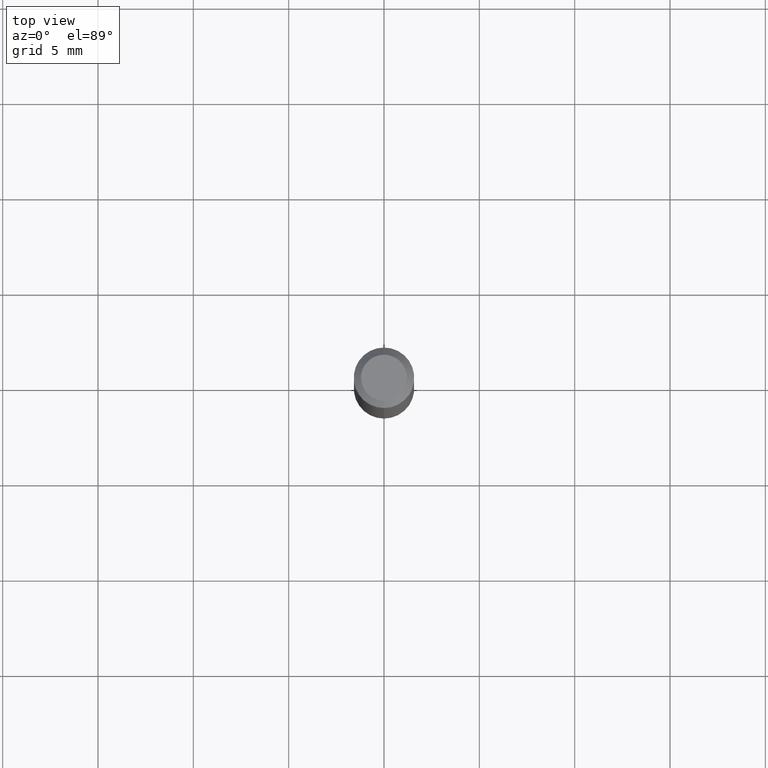
[diagram: clean part render]
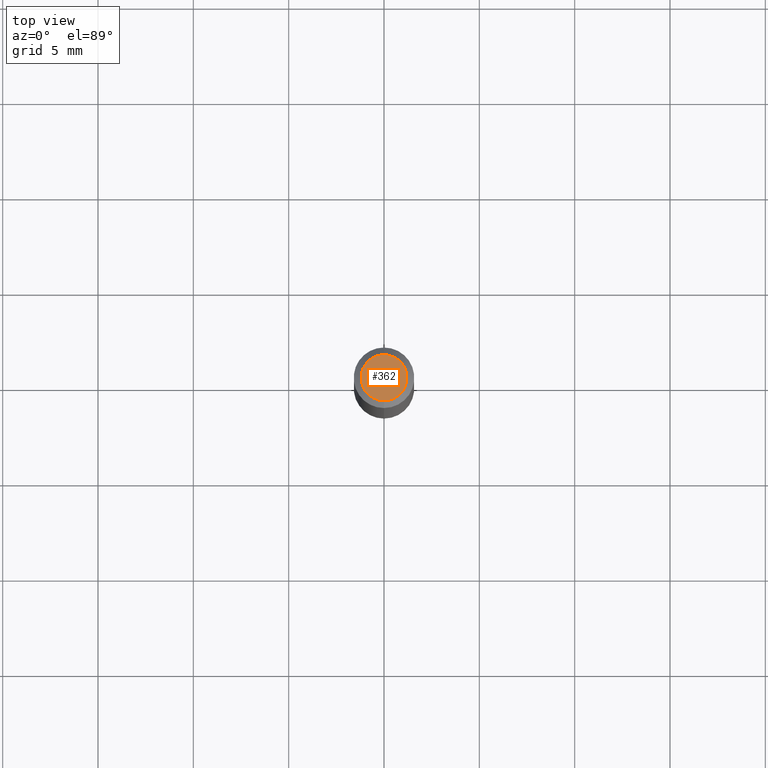
[diagram: same view with one face highlighted and labeled with its STEP entity id]
A machine part, top view. The second image highlights one B-rep face of the part: STEP entity #362.
In plain terms, the highlighted planar face has unit normal (0, -0, -1).
Its self-contained STEP definition (entity closure, byte-faithful):
#30 = CARTESIAN_POINT ( 'NONE',  ( -5.856612098317437321E-45, 8.361764383706284746E-31, 2.394893823213636661E-16 ) ) ;
#33 = DIRECTION ( 'NONE',  ( -6.982962677686266711E-15, -1.000000000000000000, 3.491496910074236347E-15 ) ) ;
#67 = DIRECTION ( 'NONE',  ( -2.445457932852582401E-29, 3.491496910074235164E-15, 1.000000000000000000 ) ) ;
#71 = DIRECTION ( 'NONE',  ( -6.982962677686266711E-15, -1.000000000000000000, 3.491496910074236347E-15 ) ) ;
#107 = CARTESIAN_POINT ( 'NONE',  ( 3.840629472727447874E-16, 0.04749999999999999362, 7.364327909283752044E-17 ) ) ;
#144 = DIRECTION ( 'NONE',  ( -2.445457932852582401E-29, 3.491496910074235164E-15, 1.000000000000000000 ) ) ;
#148 = AXIS2_PLACEMENT_3D ( 'NONE', #503, #144, #33 ) ;
#204 = EDGE_CURVE ( 'NONE', #416, #461, #440, .T. ) ;
#210 = FACE_OUTER_BOUND ( 'NONE', #329, .T. ) ;
#212 = AXIS2_PLACEMENT_3D ( 'NONE', #30, #67, #71 ) ;
#250 = EDGE_CURVE ( 'NONE', #461, #416, #490, .T. ) ;
#257 = AXIS2_PLACEMENT_3D ( 'NONE', #330, #286, #407 ) ;
#286 = DIRECTION ( 'NONE',  ( 2.445457932852581841E-29, -3.491496910074235164E-15, -1.000000000000000000 ) ) ;
#329 = EDGE_LOOP ( 'NONE', ( #453, #492 ) ) ;
#330 = CARTESIAN_POINT ( 'NONE',  ( 3.316907271900976096E-16, 0.04749999999999999362, -4.610141206784431876E-17 ) ) ;
#362 = ADVANCED_FACE ( 'NONE', ( #210 ), #484, .F. ) ;
#368 = CARTESIAN_POINT ( 'NONE',  ( -3.773273898774340269E-16, -0.04749999999999999362, 4.053354855498898610E-16 ) ) ;
#407 = DIRECTION ( 'NONE',  ( 6.982962677686265922E-15, 1.000000000000000000, -3.491496910074235164E-15 ) ) ;
#416 = VERTEX_POINT ( 'NONE', #368 ) ;
#440 = CIRCLE ( 'NONE', #212, 0.04749999999999999362 ) ;
#453 = ORIENTED_EDGE ( 'NONE', *, *, #250, .T. ) ;
#461 = VERTEX_POINT ( 'NONE', #107 ) ;
#484 = PLANE ( 'NONE',  #257 ) ;
#490 = CIRCLE ( 'NONE', #148, 0.04749999999999999362 ) ;
#492 = ORIENTED_EDGE ( 'NONE', *, *, #204, .T. ) ;
#503 = CARTESIAN_POINT ( 'NONE',  ( -5.856612098317437321E-45, 8.361764383706284746E-31, 2.394893823213636661E-16 ) ) ;